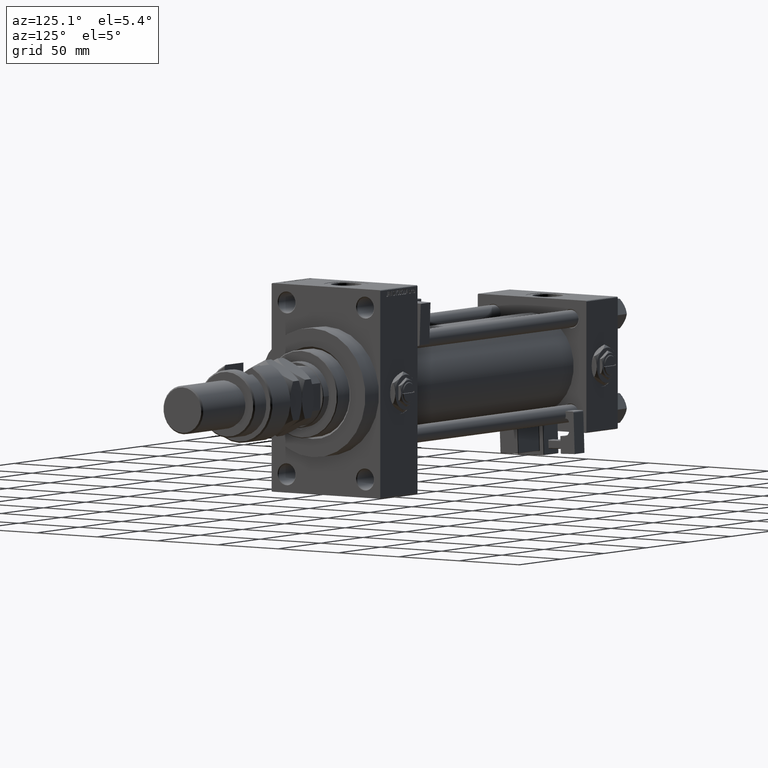
[diagram: clean part render]
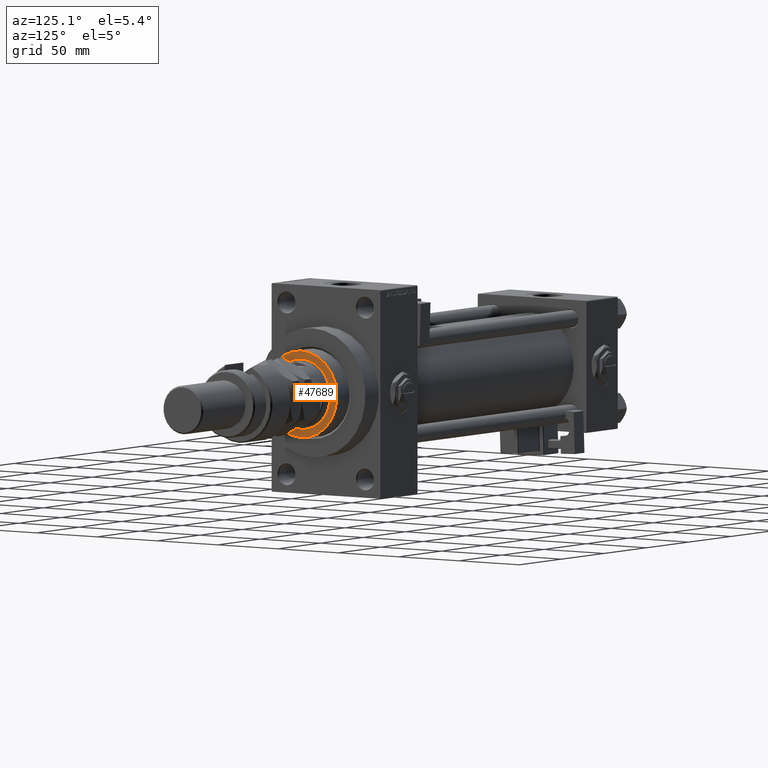
[diagram: same view with one face highlighted and labeled with its STEP entity id]
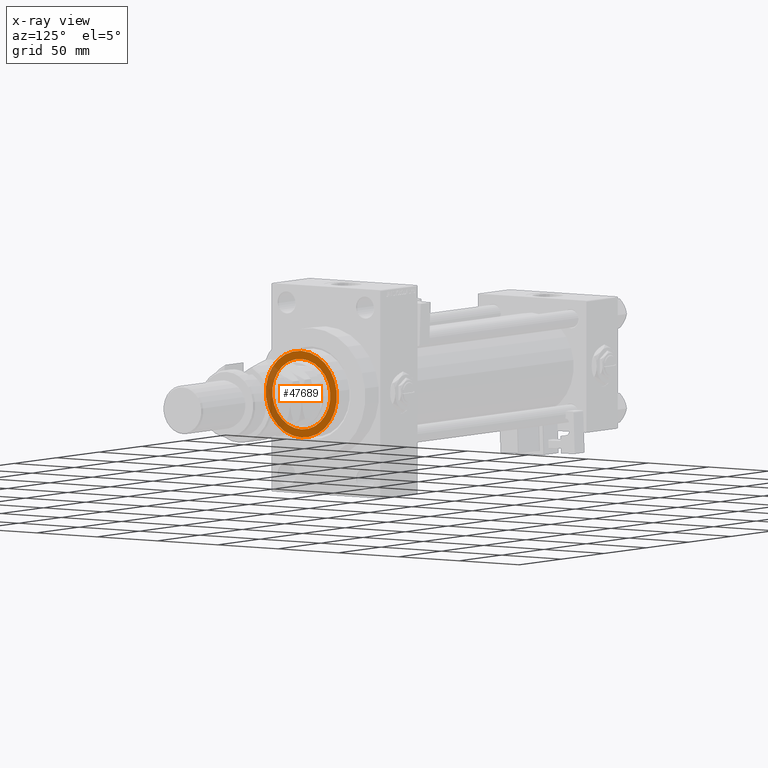
[diagram: x-ray of the same camera — body ghosted, the highlighted face saturated]
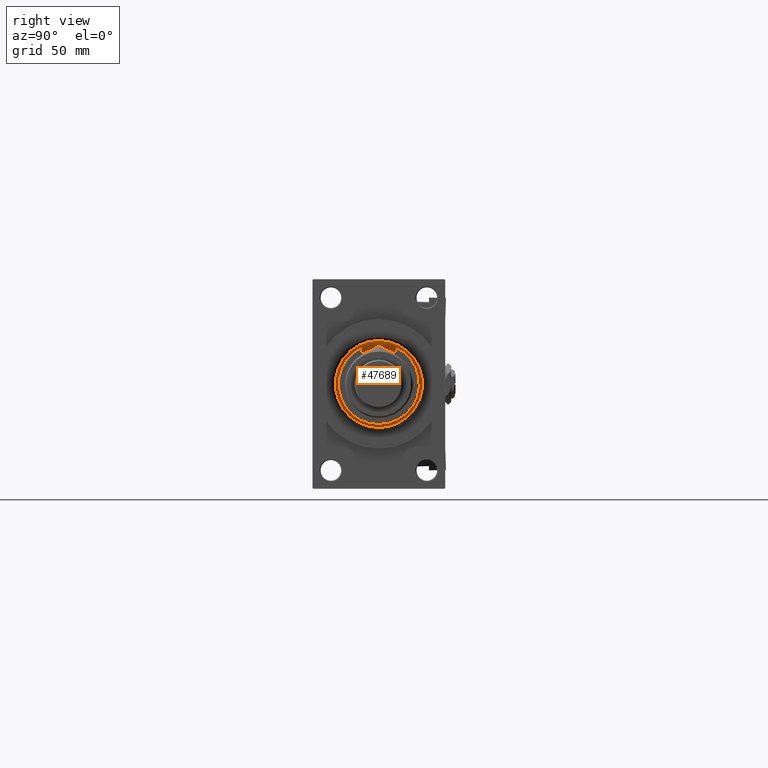
[diagram: same view with one face highlighted and labeled with its STEP entity id]
A machine part, auxiliary view. The second image highlights one B-rep face of the part: STEP entity #47689.
The next image is the same camera in x-ray: the body ghosted, the highlighted face saturated — about 26% of this face is hidden behind the body in this view.
A second angle (right view) of the same face is appended — the face is thin or edge-on in the first view.
In plain terms, the highlighted planar face has unit normal (1, -0, -0).
Its self-contained STEP definition (entity closure, byte-faithful):
#444 = AXIS2_PLACEMENT_3D ( 'NONE', #8397, #20506, #40602 ) ;
#2746 = CARTESIAN_POINT ( 'NONE',  ( 0.000000000000000000, 0.000000000000000000, 56.25999999999999801 ) ) ;
#2796 = CARTESIAN_POINT ( 'NONE',  ( 0.000000000000000000, 0.000000000000000000, 56.25999999999999801 ) ) ;
#3327 = DIRECTION ( 'NONE',  ( 1.000000000000000000, 0.000000000000000000, 0.000000000000000000 ) ) ;
#3720 = FACE_OUTER_BOUND ( 'NONE', #35156, .T. ) ;
#5252 = ORIENTED_EDGE ( 'NONE', *, *, #50923, .F. ) ;
#5893 = AXIS2_PLACEMENT_3D ( 'NONE', #2746, #14859, #27796 ) ;
#7024 = EDGE_CURVE ( 'NONE', #11495, #39198, #36577, .T. ) ;
#8294 = CARTESIAN_POINT ( 'NONE',  ( 0.000000000000000000, 0.000000000000000000, 56.25999999999999801 ) ) ;
#8397 = CARTESIAN_POINT ( 'NONE',  ( 0.000000000000000000, 0.000000000000000000, 56.25999999999999801 ) ) ;
#10823 = EDGE_LOOP ( 'NONE', ( #35281, #5252 ) ) ;
#11495 = VERTEX_POINT ( 'NONE', #22174 ) ;
#11767 = ORIENTED_EDGE ( 'NONE', *, *, #7024, .T. ) ;
#11931 = AXIS2_PLACEMENT_3D ( 'NONE', #34799, #35591, #51547 ) ;
#11981 = PLANE ( 'NONE',  #444 ) ;
#14859 = DIRECTION ( 'NONE',  ( 0.000000000000000000, 0.000000000000000000, 1.000000000000000000 ) ) ;
#16467 = EDGE_CURVE ( 'NONE', #43436, #37745, #51626, .T. ) ;
#18521 = CARTESIAN_POINT ( 'NONE',  ( 24.00000000000000355, 0.000000000000000000, 56.25999999999999801 ) ) ;
#18647 = CARTESIAN_POINT ( 'NONE',  ( 29.50000000000001066, 3.643324227463376180E-15, 56.25999999999999801 ) ) ;
#20506 = DIRECTION ( 'NONE',  ( 0.000000000000000000, 0.000000000000000000, 1.000000000000000000 ) ) ;
#22174 = CARTESIAN_POINT ( 'NONE',  ( -29.50000000000001066, 0.000000000000000000, 56.25999999999999801 ) ) ;
#22590 = CIRCLE ( 'NONE', #5893, 29.50000000000001066 ) ;
#23390 = CARTESIAN_POINT ( 'NONE',  ( -24.00000000000000355, 2.939152317953648289E-15, 56.25999999999999801 ) ) ;
#27796 = DIRECTION ( 'NONE',  ( 1.000000000000000000, 0.000000000000000000, 0.000000000000000000 ) ) ;
#27925 = AXIS2_PLACEMENT_3D ( 'NONE', #8294, #32540, #28410 ) ;
#28410 = DIRECTION ( 'NONE',  ( 1.000000000000000000, 0.000000000000000000, 0.000000000000000000 ) ) ;
#32540 = DIRECTION ( 'NONE',  ( 0.000000000000000000, 0.000000000000000000, 1.000000000000000000 ) ) ;
#32901 = FACE_BOUND ( 'NONE', #10823, .T. ) ;
#34799 = CARTESIAN_POINT ( 'NONE',  ( 0.000000000000000000, 0.000000000000000000, 56.25999999999999801 ) ) ;
#35156 = EDGE_LOOP ( 'NONE', ( #11767, #46115 ) ) ;
#35281 = ORIENTED_EDGE ( 'NONE', *, *, #16467, .F. ) ;
#35591 = DIRECTION ( 'NONE',  ( 0.000000000000000000, 0.000000000000000000, 1.000000000000000000 ) ) ;
#36577 = CIRCLE ( 'NONE', #43588, 29.50000000000001066 ) ;
#37745 = VERTEX_POINT ( 'NONE', #23390 ) ;
#39198 = VERTEX_POINT ( 'NONE', #18647 ) ;
#39208 = CIRCLE ( 'NONE', #11931, 24.00000000000000355 ) ;
#40602 = DIRECTION ( 'NONE',  ( 1.000000000000000000, 0.000000000000000000, -0.000000000000000000 ) ) ;
#43436 = VERTEX_POINT ( 'NONE', #18521 ) ;
#43588 = AXIS2_PLACEMENT_3D ( 'NONE', #2796, #49271, #3327 ) ;
#46115 = ORIENTED_EDGE ( 'NONE', *, *, #52614, .T. ) ;
#47689 = ADVANCED_FACE ( 'NONE', ( #32901, #3720 ), #11981, .T. ) ;
#49271 = DIRECTION ( 'NONE',  ( 0.000000000000000000, 0.000000000000000000, 1.000000000000000000 ) ) ;
#50923 = EDGE_CURVE ( 'NONE', #37745, #43436, #39208, .T. ) ;
#51547 = DIRECTION ( 'NONE',  ( 1.000000000000000000, 0.000000000000000000, 0.000000000000000000 ) ) ;
#51626 = CIRCLE ( 'NONE', #27925, 24.00000000000000355 ) ;
#52614 = EDGE_CURVE ( 'NONE', #39198, #11495, #22590, .T. ) ;